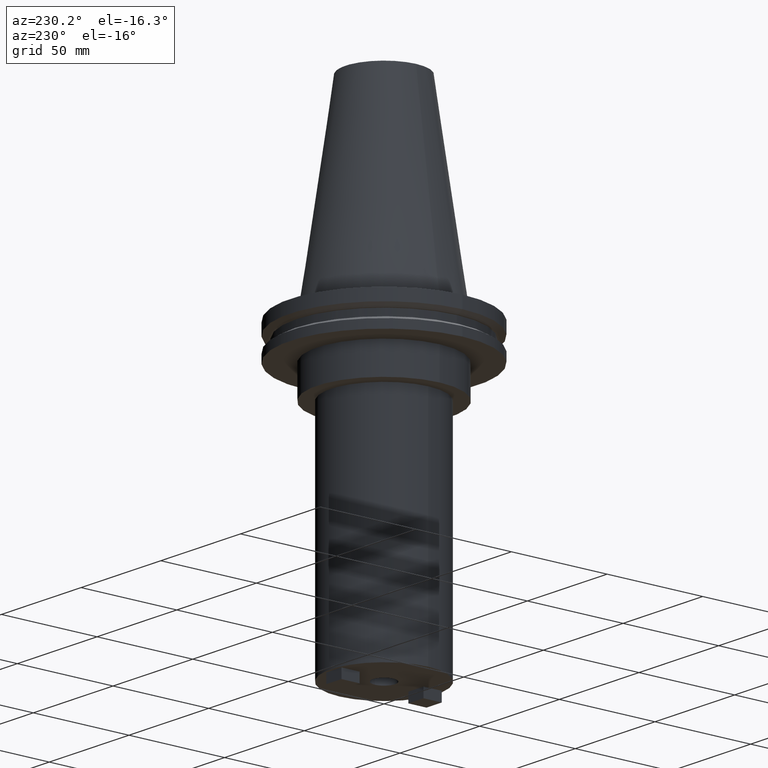
[diagram: clean part render]
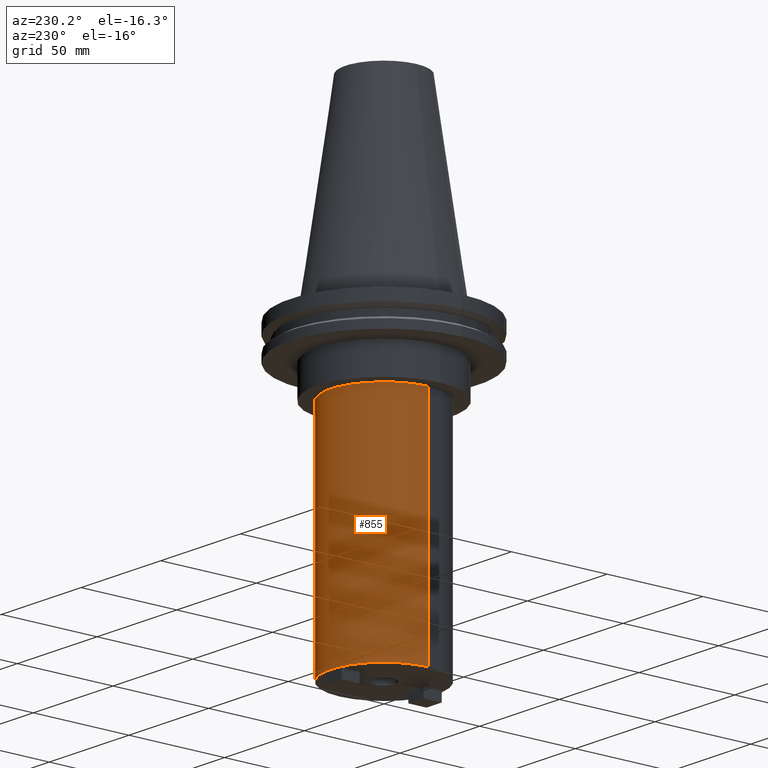
[diagram: same view with one face highlighted and labeled with its STEP entity id]
A machine part, auxiliary view. The second image highlights one B-rep face of the part: STEP entity #855.
In plain terms, the highlighted cylindrical surface (partial cylindrical patch) has radius 27.8003 mm, axis along (-0, -0, 1).
Its self-contained STEP definition (entity closure, byte-faithful):
#11 = CARTESIAN_POINT ( 'NONE',  ( -27.80030000000000001, 3.404554841033616429E-15, -152.4000000000000057 ) ) ;
#40 = DIRECTION ( 'NONE',  ( -0.000000000000000000, -0.000000000000000000, 1.000000000000000000 ) ) ;
#131 = ORIENTED_EDGE ( 'NONE', *, *, #655, .T. ) ;
#152 = VERTEX_POINT ( 'NONE', #760 ) ;
#177 = VERTEX_POINT ( 'NONE', #11 ) ;
#182 = CARTESIAN_POINT ( 'NONE',  ( 0.000000000000000000, 0.000000000000000000, -35.04999999999999716 ) ) ;
#193 = DIRECTION ( 'NONE',  ( 1.000000000000000000, 0.000000000000000000, 0.000000000000000000 ) ) ;
#291 = CIRCLE ( 'NONE', #424, 27.80030000000000001 ) ;
#345 = ORIENTED_EDGE ( 'NONE', *, *, #796, .F. ) ;
#361 = VERTEX_POINT ( 'NONE', #531 ) ;
#370 = EDGE_CURVE ( 'NONE', #361, #152, #582, .T. ) ;
#403 = EDGE_CURVE ( 'NONE', #177, #361, #453, .T. ) ;
#424 = AXIS2_PLACEMENT_3D ( 'NONE', #961, #619, #193 ) ;
#428 = DIRECTION ( 'NONE',  ( 0.000000000000000000, 0.000000000000000000, -1.000000000000000000 ) ) ;
#453 = LINE ( 'NONE', #630, #941 ) ;
#515 = VERTEX_POINT ( 'NONE', #1023 ) ;
#531 = CARTESIAN_POINT ( 'NONE',  ( -27.80030000000000001, 3.404554841033616429E-15, -35.04999999999999716 ) ) ;
#563 = AXIS2_PLACEMENT_3D ( 'NONE', #182, #428, #779 ) ;
#582 = CIRCLE ( 'NONE', #563, 27.80030000000000001 ) ;
#619 = DIRECTION ( 'NONE',  ( -0.000000000000000000, -0.000000000000000000, 1.000000000000000000 ) ) ;
#630 = CARTESIAN_POINT ( 'NONE',  ( -27.80030000000000001, 3.404554841033616429E-15, 0.000000000000000000 ) ) ;
#655 = EDGE_CURVE ( 'NONE', #515, #177, #291, .T. ) ;
#666 = CARTESIAN_POINT ( 'NONE',  ( 0.000000000000000000, 0.000000000000000000, 0.000000000000000000 ) ) ;
#740 = CYLINDRICAL_SURFACE ( 'NONE', #746, 27.80030000000000001 ) ;
#746 = AXIS2_PLACEMENT_3D ( 'NONE', #666, #1005, #980 ) ;
#760 = CARTESIAN_POINT ( 'NONE',  ( 27.80030000000000001, 0.000000000000000000, -35.04999999999999716 ) ) ;
#779 = DIRECTION ( 'NONE',  ( 1.000000000000000000, 0.000000000000000000, 0.000000000000000000 ) ) ;
#796 = EDGE_CURVE ( 'NONE', #515, #152, #830, .T. ) ;
#815 = DIRECTION ( 'NONE',  ( -0.000000000000000000, -0.000000000000000000, 1.000000000000000000 ) ) ;
#821 = FACE_OUTER_BOUND ( 'NONE', #989, .T. ) ;
#830 = LINE ( 'NONE', #1001, #898 ) ;
#855 = ADVANCED_FACE ( 'NONE', ( #821 ), #740, .T. ) ;
#898 = VECTOR ( 'NONE', #815, 1000.000000000000000 ) ;
#941 = VECTOR ( 'NONE', #40, 1000.000000000000000 ) ;
#958 = ORIENTED_EDGE ( 'NONE', *, *, #403, .T. ) ;
#961 = CARTESIAN_POINT ( 'NONE',  ( 0.000000000000000000, 0.000000000000000000, -152.4000000000000057 ) ) ;
#980 = DIRECTION ( 'NONE',  ( 1.000000000000000000, 0.000000000000000000, 0.000000000000000000 ) ) ;
#989 = EDGE_LOOP ( 'NONE', ( #131, #958, #1088, #345 ) ) ;
#1001 = CARTESIAN_POINT ( 'NONE',  ( 27.80030000000000001, 0.000000000000000000, 0.000000000000000000 ) ) ;
#1005 = DIRECTION ( 'NONE',  ( -0.000000000000000000, -0.000000000000000000, 1.000000000000000000 ) ) ;
#1023 = CARTESIAN_POINT ( 'NONE',  ( 27.80030000000000001, 0.000000000000000000, -152.4000000000000057 ) ) ;
#1088 = ORIENTED_EDGE ( 'NONE', *, *, #370, .T. ) ;